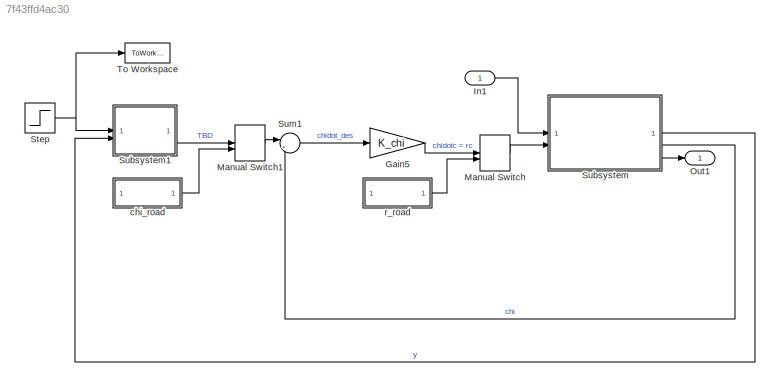
MODEL slx_7f43ffd4ac30
KIND model
CONFIG AbsTol = auto
CONFIG EnableMultiTasking = off
CONFIG FixedStep = dt
CONFIG MaxStep = auto
CONFIG MinStep = auto
CONFIG RelTol = 1e-3
CONFIG SampleTimeConstraint = Unconstrained
CONFIG SolverName = ode3
CONFIG StartTime = 0.0
CONFIG StopTime = t(end)
BLOCK [Gain] Gain5
  Gain = K_chi
BLOCK [Inport] In1
BLOCK [ManualSwitch] Manual Switch
BLOCK [ManualSwitch] Manual Switch1
BLOCK [Outport] Out1
  VectorParamsAs1DForOutWhenUnconnected = off
BLOCK [Step] Step
  SampleTime = 0
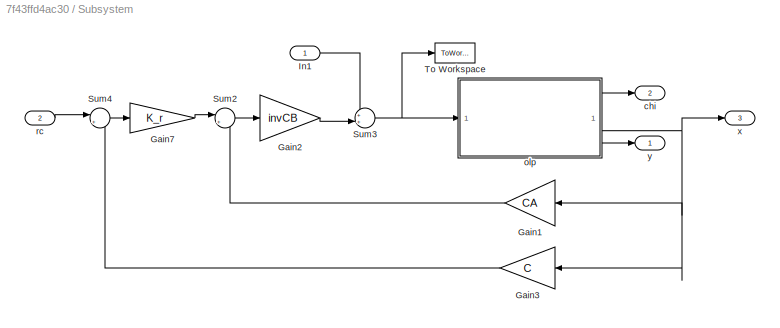
BLOCK [SubSystem] Subsystem
BLOCK [Gain] Subsystem/Gain1
  Gain = CA
  Multiplication = Matrix(K*u)
BLOCK [Gain] Subsystem/Gain2
  Gain = invCB
  Multiplication = Matrix(K*u)
BLOCK [Gain] Subsystem/Gain3
  Gain = C
  Multiplication = Matrix(K*u)
BLOCK [Gain] Subsystem/Gain7
  Gain = K_r
BLOCK [Inport] Subsystem/In1
BLOCK [Sum] Subsystem/Sum2
  Inputs = |+-
BLOCK [Sum] Subsystem/Sum3
  Inputs = ++|
BLOCK [Sum] Subsystem/Sum4
  Inputs = |+-
BLOCK [ToWorkspace] Subsystem/To Workspace
  FixptAsFi = on
  MaxDataPoints = inf
  SampleTime = -1
  VariableName = delta
BLOCK [Outport] Subsystem/chi
  Port = 2
  VectorParamsAs1DForOutWhenUnconnected = off
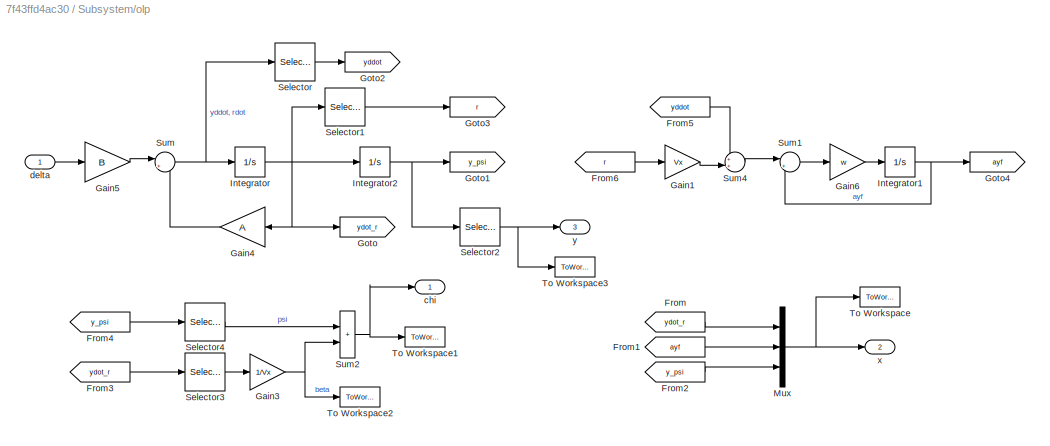
BLOCK [SubSystem] Subsystem/olp
BLOCK [From] Subsystem/olp/From
  GotoTag = ydot_r
BLOCK [From] Subsystem/olp/From1
  GotoTag = ayf
BLOCK [From] Subsystem/olp/From2
  GotoTag = y_psi
BLOCK [From] Subsystem/olp/From3
  GotoTag = ydot_r
BLOCK [From] Subsystem/olp/From4
  GotoTag = y_psi
BLOCK [From] Subsystem/olp/From5
  GotoTag = yddot
BLOCK [From] Subsystem/olp/From6
  GotoTag = r
BLOCK [Gain] Subsystem/olp/Gain1
  Gain = Vx
BLOCK [Gain] Subsystem/olp/Gain3
  Gain = 1/Vx
BLOCK [Gain] Subsystem/olp/Gain4
  Gain = A
  Multiplication = Matrix(K*u)
BLOCK [Gain] Subsystem/olp/Gain5
  Gain = B
  Multiplication = Matrix(K*u)
BLOCK [Gain] Subsystem/olp/Gain6
  Gain = w
BLOCK [Goto] Subsystem/olp/Goto
  GotoTag = ydot_r
BLOCK [Goto] Subsystem/olp/Goto1
  GotoTag = y_psi
BLOCK [Goto] Subsystem/olp/Goto2
  GotoTag = yddot
BLOCK [Goto] Subsystem/olp/Goto3
  GotoTag = r
BLOCK [Goto] Subsystem/olp/Goto4
  GotoTag = ayf
BLOCK [Integrator] Subsystem/olp/Integrator
  InitialCondition = [0;0]
BLOCK [Integrator] Subsystem/olp/Integrator1
BLOCK [Integrator] Subsystem/olp/Integrator2
  InitialCondition = [0;0]
BLOCK [Mux] Subsystem/olp/Mux
  DisplayOption = bar
  Inputs = 3
BLOCK [Selector] Subsystem/olp/Selector
  IndexOptions = Index vector (dialog)
  Indices = 1
  InputPortWidth = 2
  OutputSizes = 1
BLOCK [Selector] Subsystem/olp/Selector1
  IndexOptions = Index vector (dialog)
  Indices = 2
  InputPortWidth = 2
  OutputSizes = 1
BLOCK [Selector] Subsystem/olp/Selector2
  IndexOptions = Index vector (dialog)
  Indices = 1
  InputPortWidth = 2
  OutputSizes = 1
BLOCK [Selector] Subsystem/olp/Selector3
  IndexOptions = Index vector (dialog)
  Indices = 1
  InputPortWidth = 2
  OutputSizes = 1
BLOCK [Selector] Subsystem/olp/Selector4
  IndexOptions = Index vector (dialog)
  Indices = 2
  InputPortWidth = 2
  OutputSizes = 1
BLOCK [Sum] Subsystem/olp/Sum
  Inputs = |++
BLOCK [Sum] Subsystem/olp/Sum1
  Inputs = |+-
BLOCK [Sum] Subsystem/olp/Sum2
  IconShape = rectangular
BLOCK [Sum] Subsystem/olp/Sum4
  Inputs = ++|
BLOCK [ToWorkspace] Subsystem/olp/To Workspace
  FixptAsFi = on
  MaxDataPoints = inf
  SampleTime = -1
  VariableName = x
BLOCK [ToWorkspace] Subsystem/olp/To Workspace1
  FixptAsFi = on
  MaxDataPoints = inf
  SampleTime = -1
  VariableName = chi
BLOCK [ToWorkspace] Subsystem/olp/To Workspace2
  FixptAsFi = on
  MaxDataPoints = inf
  SampleTime = -1
  VariableName = beta
BLOCK [ToWorkspace] Subsystem/olp/To Workspace3
  FixptAsFi = on
  MaxDataPoints = inf
  SampleTime = -1
  VariableName = y
BLOCK [Outport] Subsystem/olp/chi
  VectorParamsAs1DForOutWhenUnconnected = off
BLOCK [Inport] Subsystem/olp/delta
BLOCK [Outport] Subsystem/olp/x
  Port = 2
  VectorParamsAs1DForOutWhenUnconnected = off
BLOCK [Outport] Subsystem/olp/y
  Port = 3
  VectorParamsAs1DForOutWhenUnconnected = off
BLOCK [Inport] Subsystem/rc
  Port = 2
BLOCK [Outport] Subsystem/x
  Port = 3
  VectorParamsAs1DForOutWhenUnconnected = off
BLOCK [Outport] Subsystem/y
  VectorParamsAs1DForOutWhenUnconnected = off
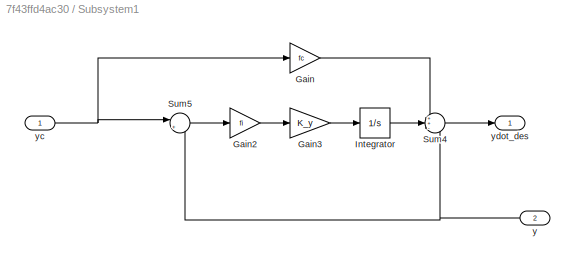
BLOCK [SubSystem] Subsystem1
BLOCK [Gain] Subsystem1/Gain
  Gain = fc
BLOCK [Gain] Subsystem1/Gain2
  Gain = fi
BLOCK [Gain] Subsystem1/Gain3
  Gain = K_y
BLOCK [Integrator] Subsystem1/Integrator
BLOCK [Sum] Subsystem1/Sum4
  Inputs = ++-
BLOCK [Sum] Subsystem1/Sum5
  Inputs = |+-
BLOCK [Inport] Subsystem1/y
  Port = 2
BLOCK [Inport] Subsystem1/yc
BLOCK [Outport] Subsystem1/ydot_des
  VectorParamsAs1DForOutWhenUnconnected = off
BLOCK [Sum] Sum1
  Inputs = |+-
BLOCK [ToWorkspace] To Workspace
  FixptAsFi = on
  MaxDataPoints = inf
  SampleTime = -1
  VariableName = yc
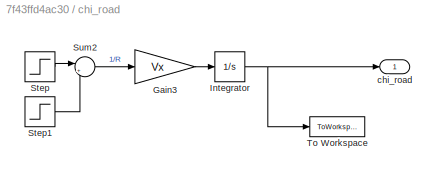
BLOCK [SubSystem] chi_road
BLOCK [Gain] chi_road/Gain3
  Gain = Vx
  Multiplication = Matrix(K*u)
BLOCK [Integrator] chi_road/Integrator
BLOCK [Step] chi_road/Step
  After = rho
  SampleTime = 0
  Time = t1
BLOCK [Step] chi_road/Step1
  After = rho
  SampleTime = 0
  Time = t2
BLOCK [Sum] chi_road/Sum2
  Inputs = |+-
BLOCK [ToWorkspace] chi_road/To Workspace
  FixptAsFi = on
  MaxDataPoints = inf
  SampleTime = -1
  VariableName = chi_road
BLOCK [Outport] chi_road/chi_road
  VectorParamsAs1DForOutWhenUnconnected = off
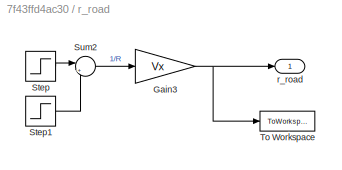
BLOCK [SubSystem] r_road
BLOCK [Gain] r_road/Gain3
  Gain = Vx
  Multiplication = Matrix(K*u)
BLOCK [Step] r_road/Step
  After = rho
  SampleTime = 0
  Time = t1
BLOCK [Step] r_road/Step1
  After = rho
  SampleTime = 0
  Time = t2
BLOCK [Sum] r_road/Sum2
  Inputs = |+-
BLOCK [ToWorkspace] r_road/To Workspace
  FixptAsFi = on
  MaxDataPoints = inf
  SampleTime = -1
  VariableName = r_road
BLOCK [Outport] r_road/r_road
  VectorParamsAs1DForOutWhenUnconnected = off
LINE Gain5:1 -> Manual Switch:1
LINE In1:1 -> Subsystem:1
LINE Manual Switch1:1 -> Sum1:1
LINE Manual Switch:1 -> Subsystem:2
NET Step:1 -> Subsystem1:1, To Workspace:1
LINE Subsystem/Gain1:1 -> Subsystem/Sum2:2
LINE Subsystem/Gain2:1 -> Subsystem/Sum3:2
LINE Subsystem/Gain3:1 -> Subsystem/Sum4:2
LINE Subsystem/Gain7:1 -> Subsystem/Sum2:1
LINE Subsystem/In1:1 -> Subsystem/Sum3:1
LINE Subsystem/Sum2:1 -> Subsystem/Gain2:1
NET Subsystem/Sum3:1 -> Subsystem/To Workspace:1, Subsystem/olp:1
LINE Subsystem/Sum4:1 -> Subsystem/Gain7:1
LINE Subsystem/olp/From1:1 -> Subsystem/olp/Mux:2
LINE Subsystem/olp/From2:1 -> Subsystem/olp/Mux:3
LINE Subsystem/olp/From3:1 -> Subsystem/olp/Selector3:1
LINE Subsystem/olp/From4:1 -> Subsystem/olp/Selector4:1
LINE Subsystem/olp/From5:1 -> Subsystem/olp/Sum4:1
LINE Subsystem/olp/From6:1 -> Subsystem/olp/Gain1:1
LINE Subsystem/olp/From:1 -> Subsystem/olp/Mux:1
LINE Subsystem/olp/Gain1:1 -> Subsystem/olp/Sum4:2
NET Subsystem/olp/Gain3:1 -> Subsystem/olp/Sum2:2, Subsystem/olp/To Workspace2:1
LINE Subsystem/olp/Gain4:1 -> Subsystem/olp/Sum:2
LINE Subsystem/olp/Gain5:1 -> Subsystem/olp/Sum:1
LINE Subsystem/olp/Gain6:1 -> Subsystem/olp/Integrator1:1
NET Subsystem/olp/Integrator1:1 -> Subsystem/olp/Goto4:1, Subsystem/olp/Sum1:2
NET Subsystem/olp/Integrator2:1 -> Subsystem/olp/Goto1:1, Subsystem/olp/Selector2:1
NET Subsystem/olp/Integrator:1 -> Subsystem/olp/Gain4:1, Subsystem/olp/Goto:1, Subsystem/olp/Integrator2:1, Subsystem/olp/Selector1:1
NET Subsystem/olp/Mux:1 -> Subsystem/olp/To Workspace:1, Subsystem/olp/x:1
LINE Subsystem/olp/Selector1:1 -> Subsystem/olp/Goto3:1
NET Subsystem/olp/Selector2:1 -> Subsystem/olp/To Workspace3:1, Subsystem/olp/y:1
LINE Subsystem/olp/Selector3:1 -> Subsystem/olp/Gain3:1
LINE Subsystem/olp/Selector4:1 -> Subsystem/olp/Sum2:1
LINE Subsystem/olp/Selector:1 -> Subsystem/olp/Goto2:1
LINE Subsystem/olp/Sum1:1 -> Subsystem/olp/Gain6:1
NET Subsystem/olp/Sum2:1 -> Subsystem/olp/To Workspace1:1, Subsystem/olp/chi:1
LINE Subsystem/olp/Sum4:1 -> Subsystem/olp/Sum1:1
NET Subsystem/olp/Sum:1 -> Subsystem/olp/Integrator:1, Subsystem/olp/Selector:1
LINE Subsystem/olp/delta:1 -> Subsystem/olp/Gain5:1
LINE Subsystem/olp:1 -> Subsystem/chi:1
NET Subsystem/olp:2 -> Subsystem/Gain1:1, Subsystem/Gain3:1, Subsystem/x:1
LINE Subsystem/olp:3 -> Subsystem/y:1
LINE Subsystem/rc:1 -> Subsystem/Sum4:1
LINE Subsystem1/Gain2:1 -> Subsystem1/Gain3:1
LINE Subsystem1/Gain3:1 -> Subsystem1/Integrator:1
LINE Subsystem1/Gain:1 -> Subsystem1/Sum4:1
LINE Subsystem1/Integrator:1 -> Subsystem1/Sum4:2
LINE Subsystem1/Sum4:1 -> Subsystem1/ydot_des:1
LINE Subsystem1/Sum5:1 -> Subsystem1/Gain2:1
NET Subsystem1/y:1 -> Subsystem1/Sum4:3, Subsystem1/Sum5:2
NET Subsystem1/yc:1 -> Subsystem1/Gain:1, Subsystem1/Sum5:1
LINE Subsystem1:1 -> Manual Switch1:1
LINE Subsystem:1 -> Subsystem1:2
LINE Subsystem:2 -> Sum1:2
LINE Subsystem:3 -> Out1:1
LINE Sum1:1 -> Gain5:1
LINE chi_road/Gain3:1 -> chi_road/Integrator:1
NET chi_road/Integrator:1 -> chi_road/To Workspace:1, chi_road/chi_road:1
LINE chi_road/Step1:1 -> chi_road/Sum2:2
LINE chi_road/Step:1 -> chi_road/Sum2:1
LINE chi_road/Sum2:1 -> chi_road/Gain3:1
LINE chi_road:1 -> Manual Switch1:2
NET r_road/Gain3:1 -> r_road/To Workspace:1, r_road/r_road:1
LINE r_road/Step1:1 -> r_road/Sum2:2
LINE r_road/Step:1 -> r_road/Sum2:1
LINE r_road/Sum2:1 -> r_road/Gain3:1
LINE r_road:1 -> Manual Switch:2
note: NET lines group one-source signal fan-out (src -> all destinations, sorted); 1:1 wires keep LINE
